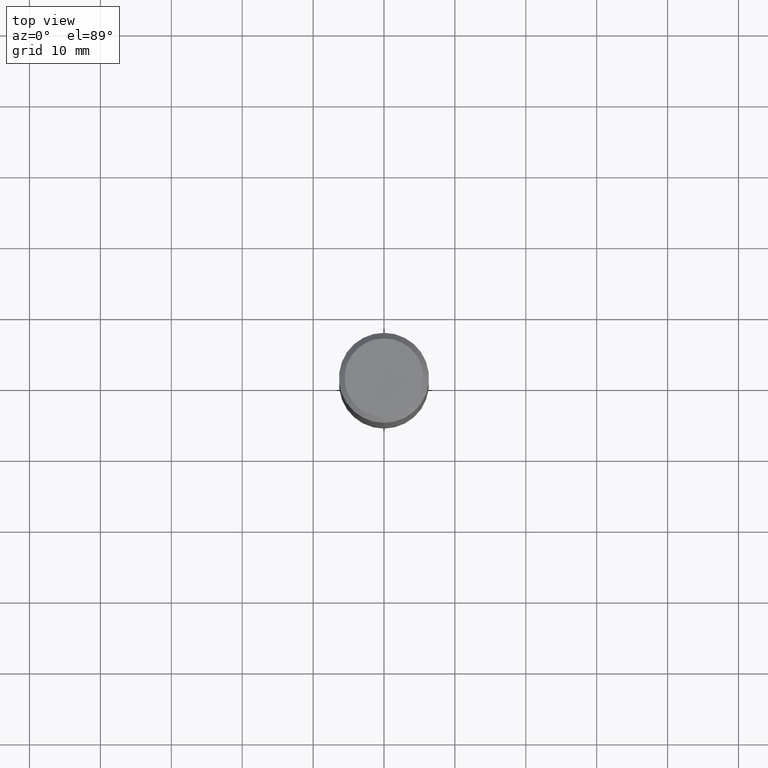
[diagram: clean part render]
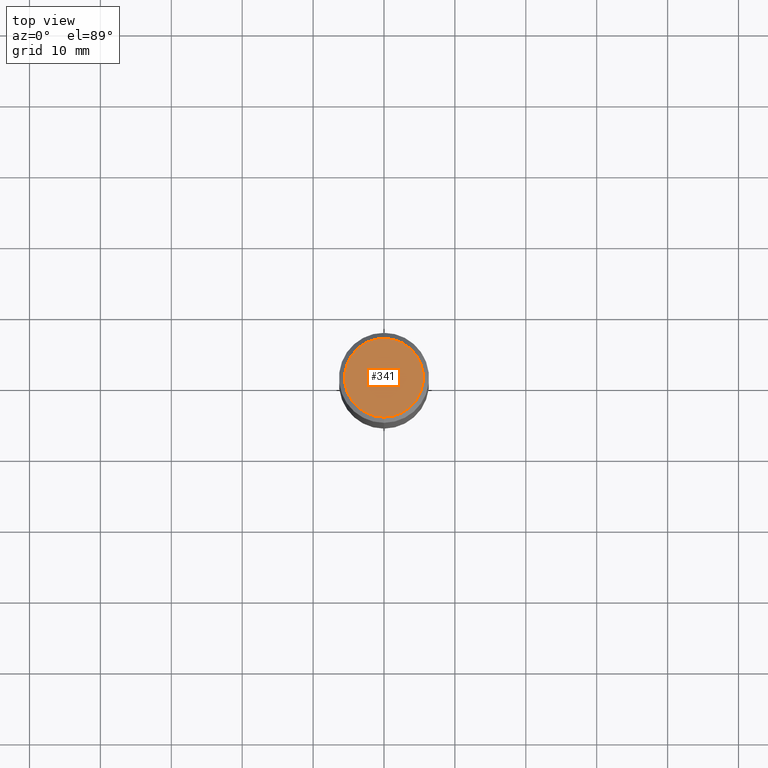
[diagram: same view with one face highlighted and labeled with its STEP entity id]
A machine part, top view. The second image highlights one B-rep face of the part: STEP entity #341.
In plain terms, the highlighted planar face has unit normal (0, -0, -1).
Its self-contained STEP definition (entity closure, byte-faithful):
#11 = PLANE ( 'NONE',  #324 ) ;
#41 = CARTESIAN_POINT ( 'NONE',  ( -3.397982428467408395E-30, -4.866104238714468673E-16, 2.086207603607217046E-17 ) ) ;
#59 = AXIS2_PLACEMENT_3D ( 'NONE', #41, #169, #238 ) ;
#60 = DIRECTION ( 'NONE',  ( -2.651392540956904653E-29, 3.196586830198859134E-15, 1.000000000000000000 ) ) ;
#74 = FACE_OUTER_BOUND ( 'NONE', #98, .T. ) ;
#98 = EDGE_LOOP ( 'NONE', ( #307, #298 ) ) ;
#115 = EDGE_CURVE ( 'NONE', #386, #191, #201, .T. ) ;
#143 = DIRECTION ( 'NONE',  ( 2.651392540956904092E-29, -3.196586830198859529E-15, -1.000000000000000000 ) ) ;
#169 = DIRECTION ( 'NONE',  ( -2.651392540956904653E-29, 3.196586830198859134E-15, 1.000000000000000000 ) ) ;
#191 = VERTEX_POINT ( 'NONE', #253 ) ;
#193 = DIRECTION ( 'NONE',  ( -6.982962677686265133E-15, -1.000000000000000000, 3.196586830198859134E-15 ) ) ;
#196 = CARTESIAN_POINT ( 'NONE',  ( -3.397982428467408395E-30, -4.866104238714468673E-16, 2.086207603607217046E-17 ) ) ;
#201 = CIRCLE ( 'NONE', #390, 0.2187500000000004441 ) ;
#238 = DIRECTION ( 'NONE',  ( -6.982962677686265133E-15, -1.000000000000000000, 3.196586830198859134E-15 ) ) ;
#253 = CARTESIAN_POINT ( 'NONE',  ( 1.636631877582718760E-15, 0.2187499999999999445, -6.783912930699296488E-16 ) ) ;
#283 = CIRCLE ( 'NONE', #59, 0.2187500000000004441 ) ;
#298 = ORIENTED_EDGE ( 'NONE', *, *, #115, .T. ) ;
#307 = ORIENTED_EDGE ( 'NONE', *, *, #411, .T. ) ;
#324 = AXIS2_PLACEMENT_3D ( 'NONE', #334, #143, #392 ) ;
#330 = CARTESIAN_POINT ( 'NONE',  ( -1.607929218227708626E-15, -0.2187500000000009159, 7.201154451420740328E-16 ) ) ;
#334 = CARTESIAN_POINT ( 'NONE',  ( 1.527523085743870251E-15, 0.2187499999999999445, -6.792604038215468675E-16 ) ) ;
#341 = ADVANCED_FACE ( 'NONE', ( #74 ), #11, .F. ) ;
#386 = VERTEX_POINT ( 'NONE', #330 ) ;
#390 = AXIS2_PLACEMENT_3D ( 'NONE', #196, #60, #193 ) ;
#392 = DIRECTION ( 'NONE',  ( 6.982962677686265922E-15, 1.000000000000000000, -3.196586830198859529E-15 ) ) ;
#411 = EDGE_CURVE ( 'NONE', #191, #386, #283, .T. ) ;